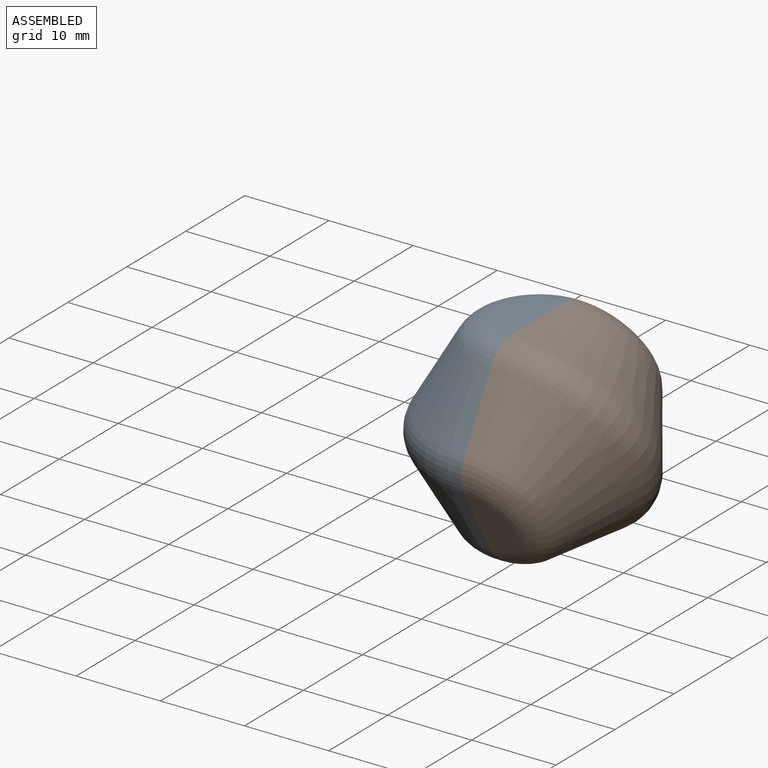
[diagram: assembled view]
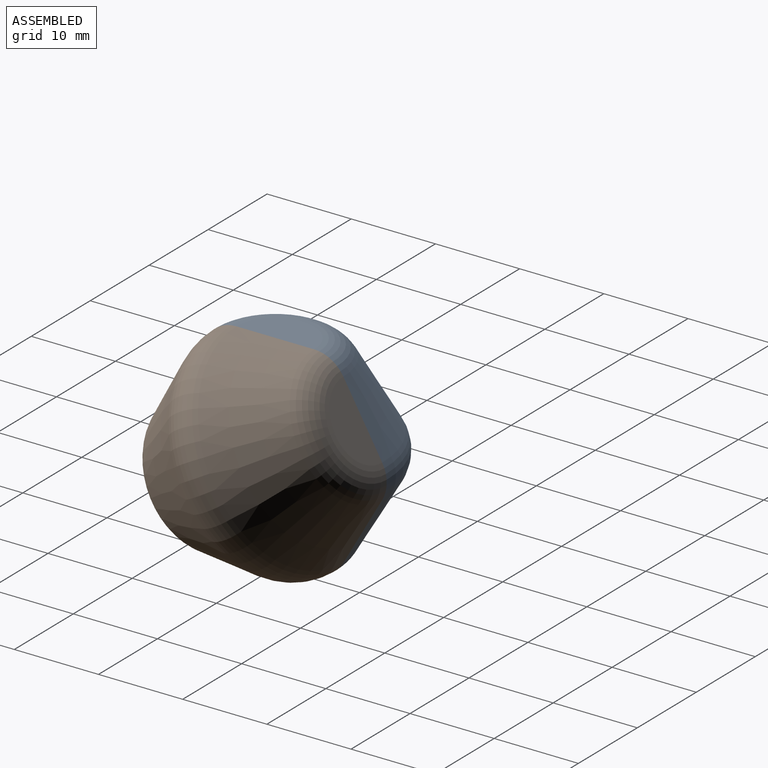
[diagram: assembled view, second angle]
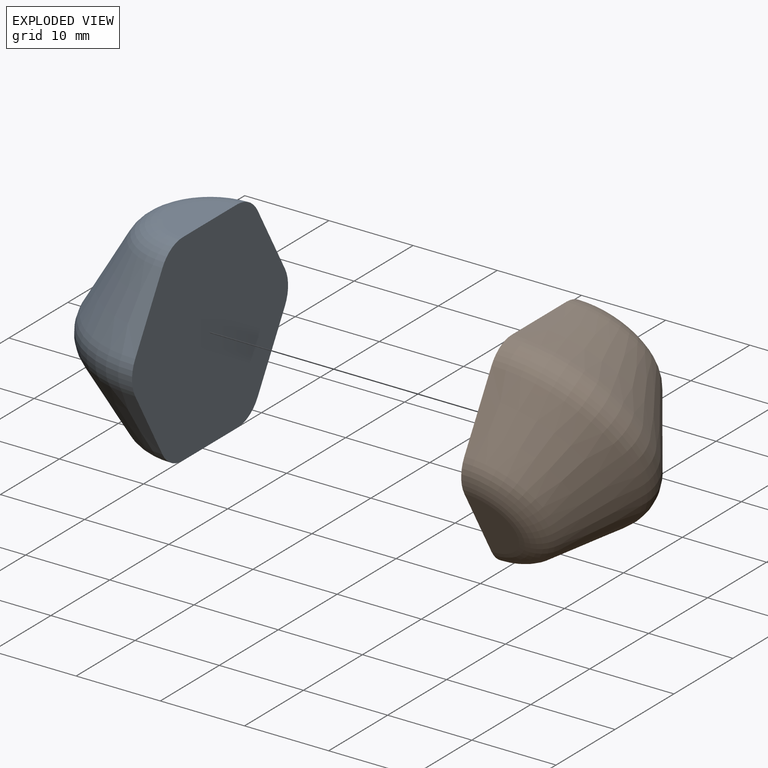
[diagram: exploded view]
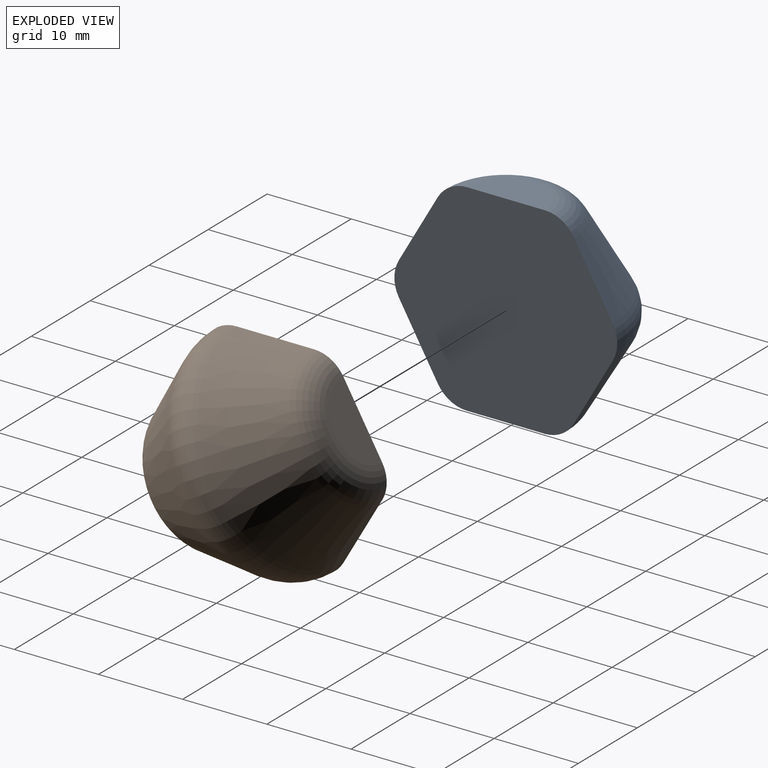
[diagram: exploded view, second angle]
ASSEMBLY  parts=2 mates=3
PART A: 8 faces, bbox 14.3x28.7x24 mm
  f0: plane 26.48x24mm, normal (1,0,0), area 493.7mm2, adj f1,f2,f3,f4,f5,f6,f7
  f1: torus R=4.62mm, axis (0,0,1), area 85.9mm2, adj f0,f6,f7
  f2: torus R=4.62mm, axis (0,0,-1), area 85.9mm2, adj f0,f3,f5
  f3: plane 9.24x4.62mm, normal (0,0,-1), area 33.5mm2, adj f0,f2
  f4: torus R=9.24mm, axis (0,0,-1), area 171.8mm2, adj f0,f5,f6
  f5: cone r=13.86mm half-angle=30deg, axis (0,0,1), area 301.6mm2, adj f0,f2,f4
  f6: cone r=6.93mm half-angle=30deg, axis (0,0,-1), area 301.6mm2, adj f0,f1,f4
  f7: plane 9.24x4.62mm, normal (0,0,1), area 33.5mm2, adj f0,f1
PART B: same geometry as A
PLACE A at identity fixed
PLACE B rot(axis=(0,-0.87,0.5),180deg) t=(0,0,0)mm
MATE planar B.f0 <-> A.f0  axis (-1,0,0) through (0,0,0)mm
MATE cylindrical B.f0 <-> A.f0  axis (-1,0,0) through (0,-4.62,12)mm
MATE cylindrical B.f0 <-> A.f0  axis (-1,0,0) through (0,12.7,2)mm
